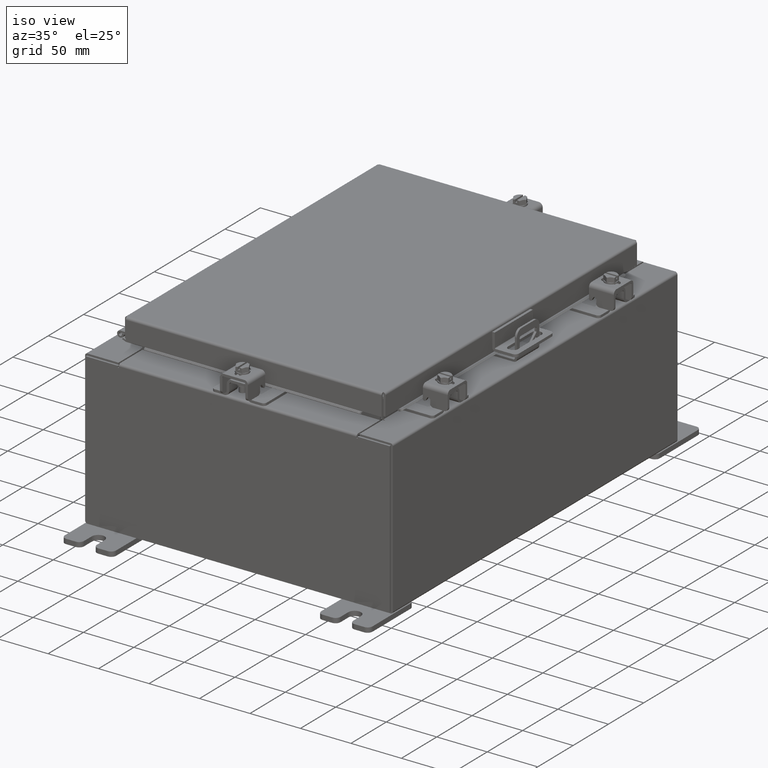
[diagram: clean part render]
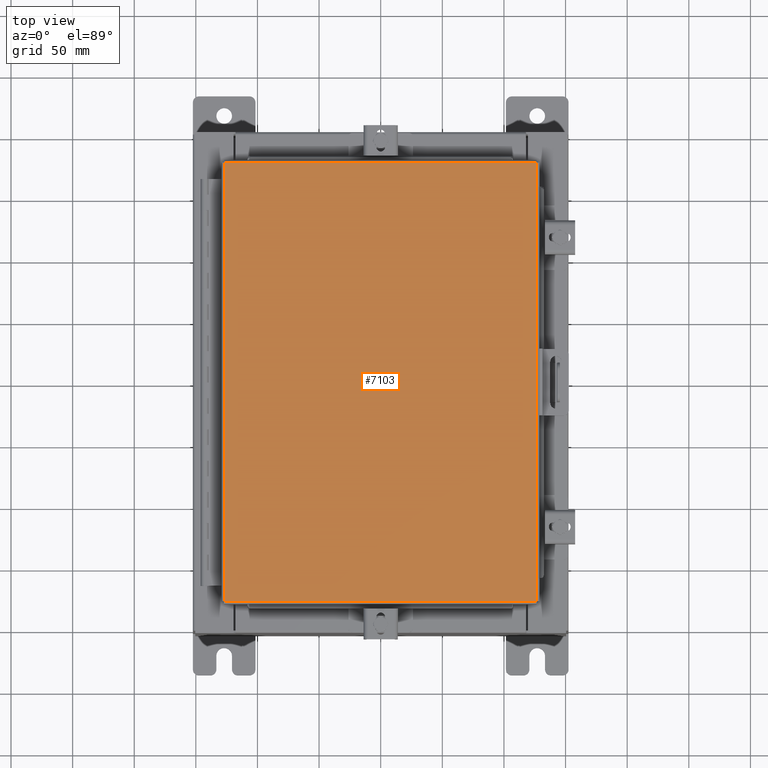
[diagram: tour spotlight — one face highlighted and labeled with its STEP entity id]
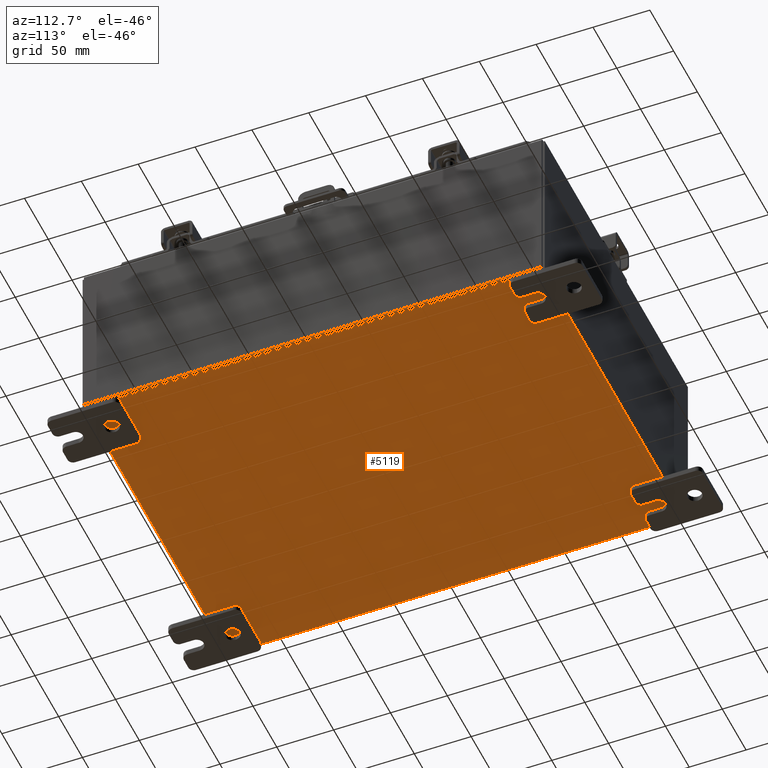
[diagram: tour spotlight — one face highlighted and labeled with its STEP entity id]
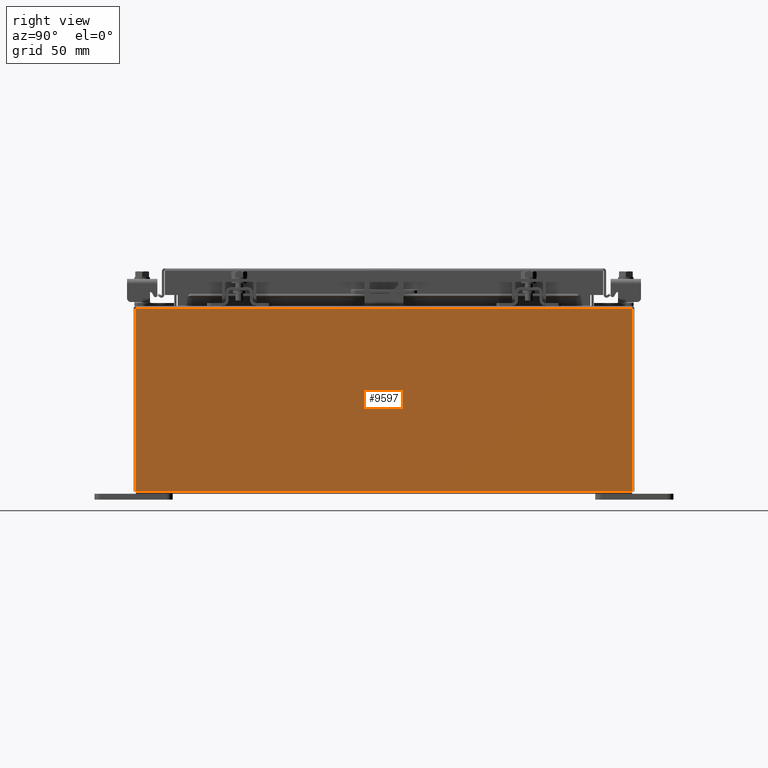
[diagram: tour spotlight — one face highlighted and labeled with its STEP entity id]
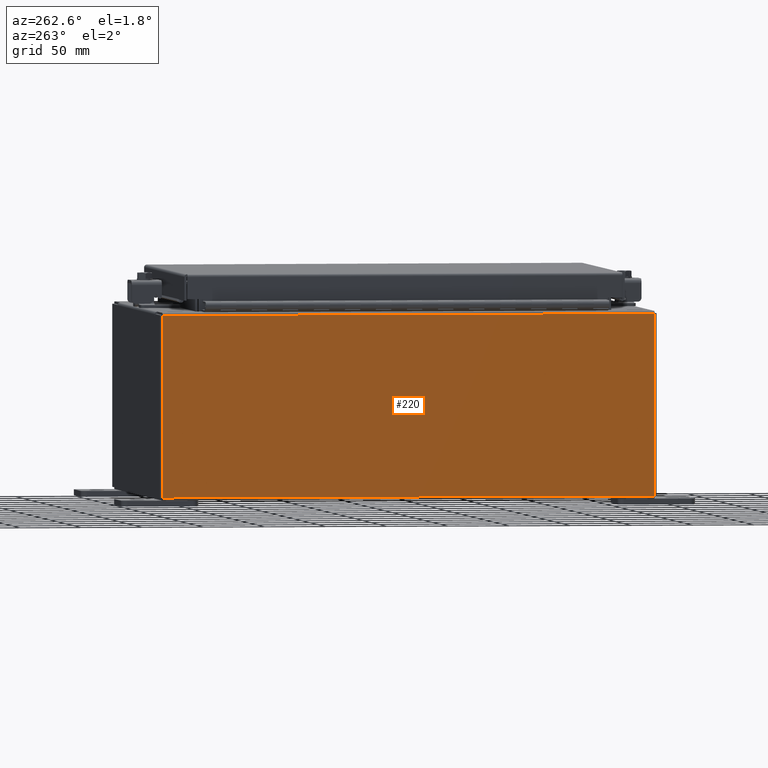
[diagram: tour spotlight — one face highlighted and labeled with its STEP entity id]
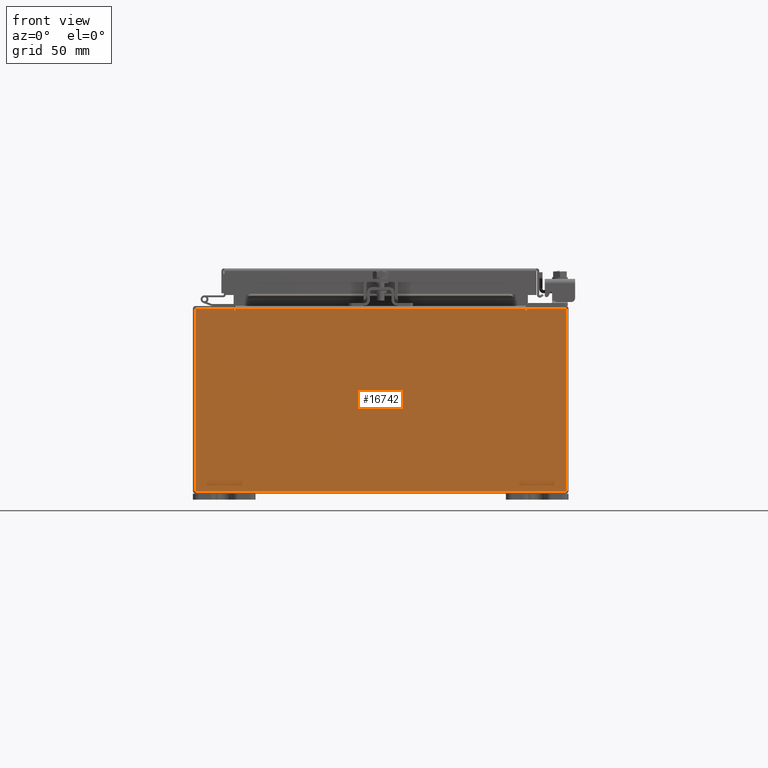
[diagram: tour spotlight — one face highlighted and labeled with its STEP entity id]
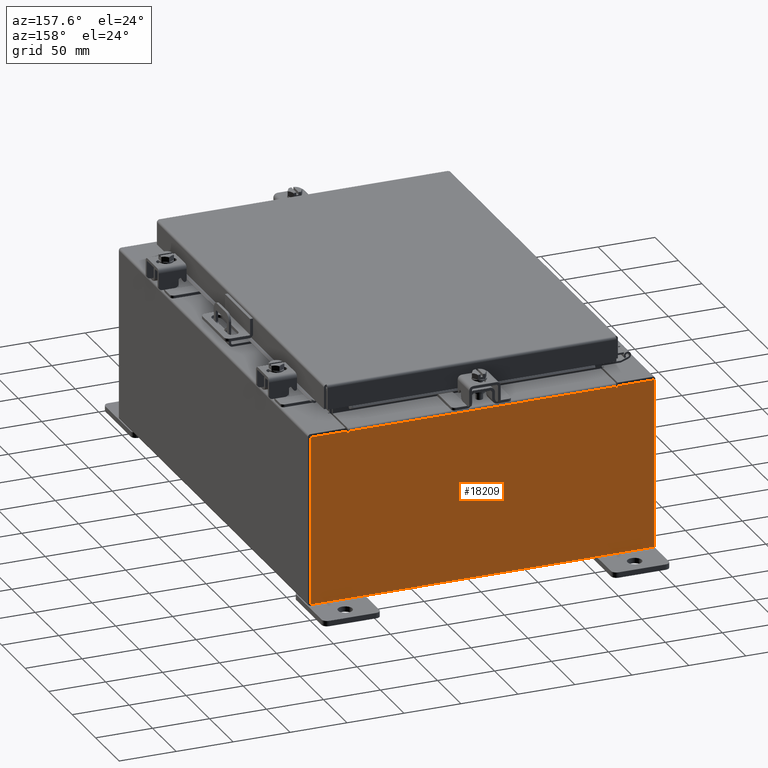
[diagram: tour spotlight — one face highlighted and labeled with its STEP entity id]
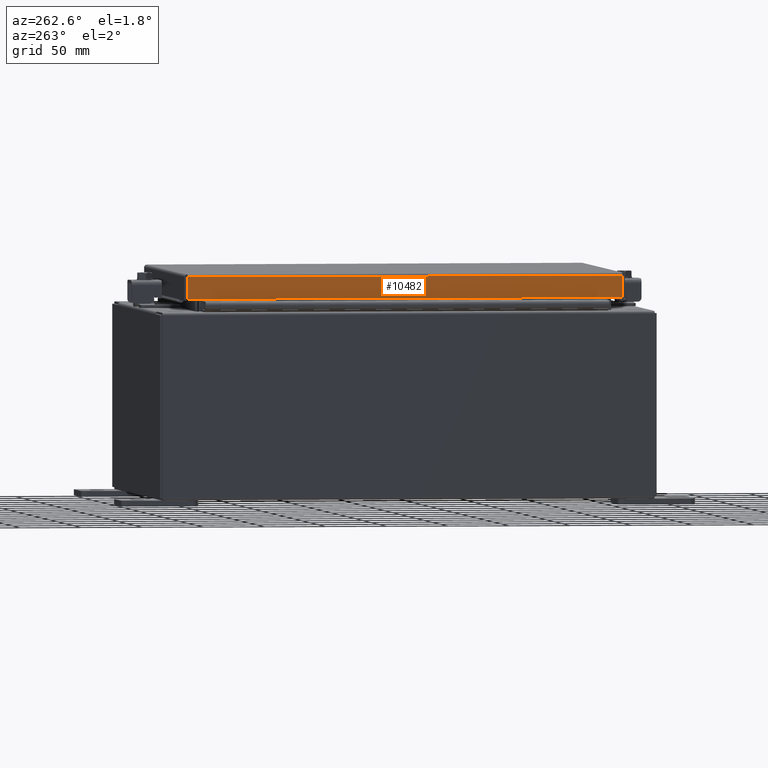
[diagram: tour spotlight — one face highlighted and labeled with its STEP entity id]
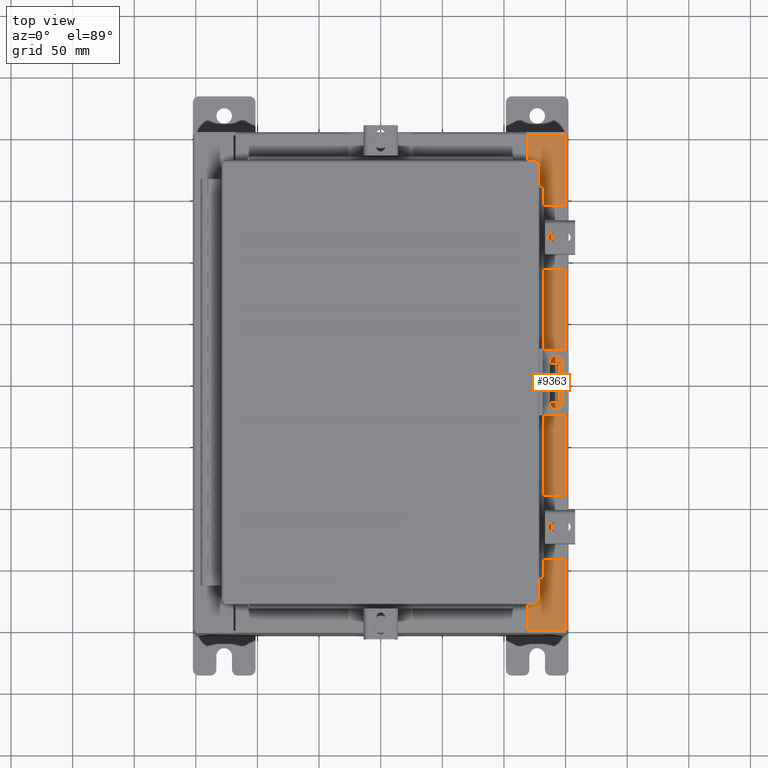
[diagram: tour spotlight — one face highlighted and labeled with its STEP entity id]
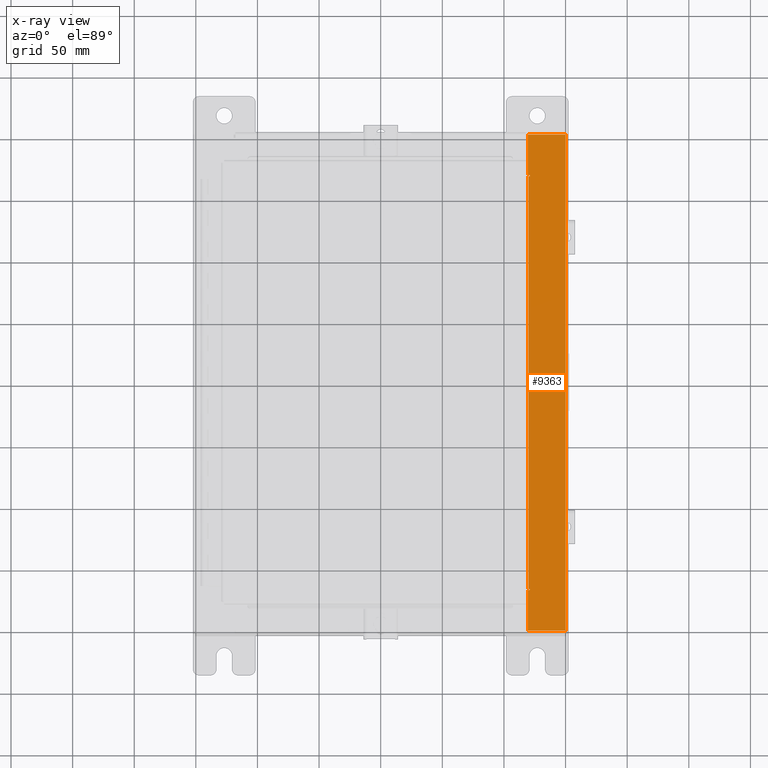
[diagram: x-ray of the same camera — body ghosted, this tour face saturated]
A machine part: a face-by-face anatomy tour. The part has 1267 B-rep faces; the first image is the clean iso view, then the 8 largest visible faces are spotlighted one at a time (largest first), each with its STEP entity span.

Face 1 — top view, entity #7103. In plain terms, the highlighted planar face has unit normal (0, 0, -1).
Definition (entity closure, byte-faithful):
#1091 = CARTESIAN_POINT ( 'NONE',  ( -4.990300000000000400, -7.006300000000000400, -2.048885995248197400E-016 ) ) ;
#2001 = CARTESIAN_POINT ( 'NONE',  ( -4.990300000000000400, 7.006300000000000400, -2.048885995248197400E-016 ) ) ;
#4199 = LINE ( 'NONE', #21515, #19618 ) ;
#4566 = FACE_OUTER_BOUND ( 'NONE', #17044, .T. ) ;
#4718 = CARTESIAN_POINT ( 'NONE',  ( -4.990300000000000400, -7.006300000000000400, -2.048885995248197400E-016 ) ) ;
#4754 = LINE ( 'NONE', #23466, #19528 ) ;
#6395 = ORIENTED_EDGE ( 'NONE', *, *, #11896, .T. ) ;
#6730 = DIRECTION ( 'NONE',  ( 1.000000000000000000, -0.0000000000000000000, -0.0000000000000000000 ) ) ;
#6850 = CARTESIAN_POINT ( 'NONE',  ( 0.0000000000000000000, 0.0000000000000000000, 0.0000000000000000000 ) ) ;
#7103 = ADVANCED_FACE ( 'NONE', ( #4566 ), #10898, .F. ) ;
#7270 = CARTESIAN_POINT ( 'NONE',  ( 4.990299999999998600, -7.006300000000000400, 3.414809992080329000E-016 ) ) ;
#7293 = DIRECTION ( 'NONE',  ( -1.000000000000000000, -0.0000000000000000000, -0.0000000000000000000 ) ) ;
#7825 = DIRECTION ( 'NONE',  ( 0.0000000000000000000, 1.000000000000000000, 0.0000000000000000000 ) ) ;
#9302 = CARTESIAN_POINT ( 'NONE',  ( 4.990299999999998600, 7.006300000000000400, -2.048885995248197400E-016 ) ) ;
#9465 = DIRECTION ( 'NONE',  ( 0.0000000000000000000, -1.000000000000000000, 0.0000000000000000000 ) ) ;
#10430 = VERTEX_POINT ( 'NONE', #1091 ) ;
#10898 = PLANE ( 'NONE',  #16053 ) ;
#11896 = EDGE_CURVE ( 'NONE', #21162, #13331, #4754, .T. ) ;
#12917 = DIRECTION ( 'NONE',  ( -1.000000000000000000, 0.0000000000000000000, -0.0000000000000000000 ) ) ;
#12961 = EDGE_CURVE ( 'NONE', #10430, #25409, #18197, .T. ) ;
#13331 = VERTEX_POINT ( 'NONE', #2001 ) ;
#15530 = VECTOR ( 'NONE', #7825, 39.37007874015748100 ) ;
#16053 = AXIS2_PLACEMENT_3D ( 'NONE', #6850, #24957, #12917 ) ;
#17044 = EDGE_LOOP ( 'NONE', ( #18362, #24315, #6395, #19094 ) ) ;
#17837 = CARTESIAN_POINT ( 'NONE',  ( 4.990299999999998600, -7.006300000000000400, 3.414809992080329000E-016 ) ) ;
#18197 = LINE ( 'NONE', #4718, #22918 ) ;
#18362 = ORIENTED_EDGE ( 'NONE', *, *, #12961, .T. ) ;
#19094 = ORIENTED_EDGE ( 'NONE', *, *, #25486, .T. ) ;
#19528 = VECTOR ( 'NONE', #7293, 39.37007874015748100 ) ;
#19618 = VECTOR ( 'NONE', #9465, 39.37007874015748100 ) ;
#20881 = LINE ( 'NONE', #17837, #15530 ) ;
#21162 = VERTEX_POINT ( 'NONE', #9302 ) ;
#21515 = CARTESIAN_POINT ( 'NONE',  ( -4.990300000000000400, 7.006300000000000400, -2.048885995248197400E-016 ) ) ;
#22918 = VECTOR ( 'NONE', #6730, 39.37007874015748100 ) ;
#23466 = CARTESIAN_POINT ( 'NONE',  ( 4.990299999999998600, 7.006300000000000400, -2.048885995248197400E-016 ) ) ;
#24315 = ORIENTED_EDGE ( 'NONE', *, *, #24959, .T. ) ;
#24957 = DIRECTION ( 'NONE',  ( 0.0000000000000000000, 0.0000000000000000000, -1.000000000000000000 ) ) ;
#24959 = EDGE_CURVE ( 'NONE', #25409, #21162, #20881, .T. ) ;
#25409 = VERTEX_POINT ( 'NONE', #7270 ) ;
#25486 = EDGE_CURVE ( 'NONE', #13331, #10430, #4199, .T. ) ;

Face 2 — auxiliary view, entity #5119. In plain terms, the highlighted planar face has unit normal (0, 0, -1).
Definition (entity closure, byte-faithful):
#1727 = CARTESIAN_POINT ( 'NONE',  ( -6.000000000000001800, -7.925300000000000900, -0.07470000000000000300 ) ) ;
#1818 = CARTESIAN_POINT ( 'NONE',  ( 5.912299999999999200, 7.925300000000000000, -0.07469999999999994700 ) ) ;
#2119 = ORIENTED_EDGE ( 'NONE', *, *, #8150, .T. ) ;
#2494 = CARTESIAN_POINT ( 'NONE',  ( 0.0000000000000000000, 0.0000000000000000000, -0.07470000000000000300 ) ) ;
#3036 = DIRECTION ( 'NONE',  ( -0.0000000000000000000, 1.000000000000000000, -8.208677865577646300E-017 ) ) ;
#4610 = PLANE ( 'NONE',  #10139 ) ;
#4791 = VECTOR ( 'NONE', #20823, 39.37007874015748100 ) ;
#4872 = CARTESIAN_POINT ( 'NONE',  ( -6.000000000000001800, 7.925299999999998200, -0.07470000000000000300 ) ) ;
#5119 = ADVANCED_FACE ( 'NONE', ( #9361 ), #4610, .T. ) ;
#6618 = DIRECTION ( 'NONE',  ( -1.000000000000000000, 0.0000000000000000000, -0.0000000000000000000 ) ) ;
#6880 = DIRECTION ( 'NONE',  ( -1.000000000000000000, -0.0000000000000000000, -0.0000000000000000000 ) ) ;
#6930 = CARTESIAN_POINT ( 'NONE',  ( -5.912300000000001000, 7.925299999999998200, -0.07470000000000000300 ) ) ;
#7063 = VECTOR ( 'NONE', #6880, 39.37007874015748100 ) ;
#8150 = EDGE_CURVE ( 'NONE', #21333, #21659, #25529, .T. ) ;
#8328 = LINE ( 'NONE', #4872, #7063 ) ;
#8868 = VECTOR ( 'NONE', #9809, 39.37007874015748100 ) ;
#9361 = FACE_OUTER_BOUND ( 'NONE', #15753, .T. ) ;
#9809 = DIRECTION ( 'NONE',  ( 1.000000000000000000, 0.0000000000000000000, 0.0000000000000000000 ) ) ;
#10139 = AXIS2_PLACEMENT_3D ( 'NONE', #2494, #18641, #6618 ) ;
#10779 = ORIENTED_EDGE ( 'NONE', *, *, #24456, .T. ) ;
#10810 = CARTESIAN_POINT ( 'NONE',  ( 5.912299999999999200, 7.925300000000000000, -0.07469999999999994700 ) ) ;
#11491 = VECTOR ( 'NONE', #3036, 39.37007874015748100 ) ;
#11789 = ORIENTED_EDGE ( 'NONE', *, *, #17501, .F. ) ;
#15753 = EDGE_LOOP ( 'NONE', ( #11789, #10779, #19128, #2119 ) ) ;
#16812 = LINE ( 'NONE', #16985, #11491 ) ;
#16985 = CARTESIAN_POINT ( 'NONE',  ( -5.912300000000001000, -7.925300000000000900, -0.07469999999999874000 ) ) ;
#17305 = VERTEX_POINT ( 'NONE', #6930 ) ;
#17501 = EDGE_CURVE ( 'NONE', #19889, #21659, #18947, .T. ) ;
#18641 = DIRECTION ( 'NONE',  ( 0.0000000000000000000, 0.0000000000000000000, -1.000000000000000000 ) ) ;
#18947 = LINE ( 'NONE', #1727, #8868 ) ;
#19128 = ORIENTED_EDGE ( 'NONE', *, *, #24647, .F. ) ;
#19889 = VERTEX_POINT ( 'NONE', #22220 ) ;
#20823 = DIRECTION ( 'NONE',  ( -0.0000000000000000000, -1.000000000000000000, -0.0000000000000000000 ) ) ;
#21333 = VERTEX_POINT ( 'NONE', #1818 ) ;
#21659 = VERTEX_POINT ( 'NONE', #23814 ) ;
#22220 = CARTESIAN_POINT ( 'NONE',  ( -5.912300000000001000, -7.925300000000000900, -0.07469999999999874000 ) ) ;
#23814 = CARTESIAN_POINT ( 'NONE',  ( 5.912299999999994800, -7.925300000000000900, -0.07470000000000000300 ) ) ;
#24456 = EDGE_CURVE ( 'NONE', #19889, #17305, #16812, .T. ) ;
#24647 = EDGE_CURVE ( 'NONE', #21333, #17305, #8328, .T. ) ;
#25529 = LINE ( 'NONE', #10810, #4791 ) ;

Face 3 — right view, entity #9597. In plain terms, the highlighted planar face has unit normal (-1, 0, 0).
Definition (entity closure, byte-faithful):
#254 = ORIENTED_EDGE ( 'NONE', *, *, #19603, .T. ) ;
#570 = EDGE_CURVE ( 'NONE', #20635, #15788, #23579, .T. ) ;
#2517 = PLANE ( 'NONE',  #7023 ) ;
#2688 = DIRECTION ( 'NONE',  ( 3.503965158194251300E-015, 0.0000000000000000000, 1.000000000000000000 ) ) ;
#3019 = CARTESIAN_POINT ( 'NONE',  ( 5.999999999999999100, -7.925300000000000000, 0.01299999999999984700 ) ) ;
#4547 = DIRECTION ( 'NONE',  ( -1.000000000000000000, 0.0000000000000000000, 3.503965158194250900E-015 ) ) ;
#6596 = CARTESIAN_POINT ( 'NONE',  ( 6.000000000000020400, 7.925300000000000000, 5.837600000000001000 ) ) ;
#7023 = AXIS2_PLACEMENT_3D ( 'NONE', #16473, #4547, #18588 ) ;
#7066 = CARTESIAN_POINT ( 'NONE',  ( 5.999999999999999100, -7.925300000000000000, 0.01299999999999984500 ) ) ;
#7349 = EDGE_CURVE ( 'NONE', #20635, #10408, #25337, .T. ) ;
#7385 = CARTESIAN_POINT ( 'NONE',  ( 5.999999999999999100, -7.925300000000000900, -1.982302697000672100E-014 ) ) ;
#8366 = VERTEX_POINT ( 'NONE', #23447 ) ;
#9402 = DIRECTION ( 'NONE',  ( -3.503965158194251300E-015, -1.844192188523290500E-016, -1.000000000000000000 ) ) ;
#9597 = ADVANCED_FACE ( 'NONE', ( #22641 ), #2517, .F. ) ;
#10408 = VERTEX_POINT ( 'NONE', #7066 ) ;
#10495 = VECTOR ( 'NONE', #16589, 39.37007874015748100 ) ;
#10671 = CARTESIAN_POINT ( 'NONE',  ( 5.999999999999999100, 7.925299999999998200, -2.128460460517708500E-014 ) ) ;
#12933 = VECTOR ( 'NONE', #9402, 39.37007874015748100 ) ;
#13566 = CARTESIAN_POINT ( 'NONE',  ( 5.999999999999999100, 7.925300000000000000, 0.01299999999999984700 ) ) ;
#13574 = LINE ( 'NONE', #7385, #12933 ) ;
#14828 = ORIENTED_EDGE ( 'NONE', *, *, #25180, .T. ) ;
#15054 = DIRECTION ( 'NONE',  ( -0.0000000000000000000, -1.000000000000000000, -0.0000000000000000000 ) ) ;
#15274 = VECTOR ( 'NONE', #15054, 39.37007874015748100 ) ;
#15788 = VERTEX_POINT ( 'NONE', #21253 ) ;
#15800 = EDGE_LOOP ( 'NONE', ( #14828, #254, #18559, #25834 ) ) ;
#16473 = CARTESIAN_POINT ( 'NONE',  ( 5.999999999999999100, 0.0000000000000000000, -2.128460460517708500E-014 ) ) ;
#16589 = DIRECTION ( 'NONE',  ( -0.0000000000000000000, -1.000000000000000000, -0.0000000000000000000 ) ) ;
#18224 = VECTOR ( 'NONE', #2688, 39.37007874015748100 ) ;
#18559 = ORIENTED_EDGE ( 'NONE', *, *, #7349, .F. ) ;
#18588 = DIRECTION ( 'NONE',  ( 3.503965158194250900E-015, 0.0000000000000000000, 1.000000000000000000 ) ) ;
#19603 = EDGE_CURVE ( 'NONE', #8366, #10408, #13574, .T. ) ;
#20635 = VERTEX_POINT ( 'NONE', #13566 ) ;
#21192 = LINE ( 'NONE', #6596, #10495 ) ;
#21253 = CARTESIAN_POINT ( 'NONE',  ( 6.000000000000020400, 7.925300000000000000, 5.837600000000001000 ) ) ;
#22641 = FACE_OUTER_BOUND ( 'NONE', #15800, .T. ) ;
#23447 = CARTESIAN_POINT ( 'NONE',  ( 6.000000000000020400, -7.925300000000000000, 5.837600000000001000 ) ) ;
#23579 = LINE ( 'NONE', #10671, #18224 ) ;
#25180 = EDGE_CURVE ( 'NONE', #15788, #8366, #21192, .T. ) ;
#25337 = LINE ( 'NONE', #3019, #15274 ) ;
#25834 = ORIENTED_EDGE ( 'NONE', *, *, #570, .T. ) ;

Face 4 — auxiliary view, entity #220. In plain terms, the highlighted planar face has unit normal (1, 0, 0).
Definition (entity closure, byte-faithful):
#220 = ADVANCED_FACE ( 'NONE', ( #21440 ), #9411, .F. ) ;
#444 = VERTEX_POINT ( 'NONE', #8073 ) ;
#903 = CARTESIAN_POINT ( 'NONE',  ( -6.000000000000001800, -7.925300000000000900, 0.01300000000000094000 ) ) ;
#1325 = CARTESIAN_POINT ( 'NONE',  ( -6.000000000000001800, 0.0000000000000000000, -2.128460460517709800E-014 ) ) ;
#1376 = EDGE_CURVE ( 'NONE', #20163, #444, #17872, .T. ) ;
#1570 = CARTESIAN_POINT ( 'NONE',  ( -6.000000000000001800, -7.925300000000000900, -1.982302697000673400E-014 ) ) ;
#2793 = EDGE_CURVE ( 'NONE', #5574, #13537, #8378, .T. ) ;
#4273 = EDGE_CURVE ( 'NONE', #13537, #20163, #16311, .T. ) ;
#5574 = VERTEX_POINT ( 'NONE', #903 ) ;
#8073 = CARTESIAN_POINT ( 'NONE',  ( -6.000000000000001800, 7.925299999999998200, 0.01299999999999974100 ) ) ;
#8378 = LINE ( 'NONE', #1570, #23786 ) ;
#8671 = CARTESIAN_POINT ( 'NONE',  ( -6.000000000000023100, -7.925300000000000000, 5.837599999999999200 ) ) ;
#9411 = PLANE ( 'NONE',  #24563 ) ;
#9659 = DIRECTION ( 'NONE',  ( -3.503965158194252100E-015, 1.844192188523290500E-016, 1.000000000000000000 ) ) ;
#10697 = DIRECTION ( 'NONE',  ( 3.503965158194252100E-015, 0.0000000000000000000, -1.000000000000000000 ) ) ;
#11135 = EDGE_LOOP ( 'NONE', ( #25802, #21094, #13619, #13329 ) ) ;
#11213 = EDGE_CURVE ( 'NONE', #5574, #444, #18879, .T. ) ;
#11428 = DIRECTION ( 'NONE',  ( 2.415631001295207100E-031, 1.000000000000000000, -6.893992640440775600E-017 ) ) ;
#11449 = DIRECTION ( 'NONE',  ( 3.503965158194251300E-015, 0.0000000000000000000, -1.000000000000000000 ) ) ;
#12288 = VECTOR ( 'NONE', #11428, 39.37007874015748100 ) ;
#13329 = ORIENTED_EDGE ( 'NONE', *, *, #2793, .T. ) ;
#13537 = VERTEX_POINT ( 'NONE', #8671 ) ;
#13619 = ORIENTED_EDGE ( 'NONE', *, *, #11213, .F. ) ;
#15679 = VECTOR ( 'NONE', #21049, 39.37007874015748100 ) ;
#16311 = LINE ( 'NONE', #18942, #15679 ) ;
#16609 = VECTOR ( 'NONE', #10697, 39.37007874015748100 ) ;
#17872 = LINE ( 'NONE', #20717, #16609 ) ;
#18879 = LINE ( 'NONE', #25487, #12288 ) ;
#18942 = CARTESIAN_POINT ( 'NONE',  ( -6.000000000000023100, -7.925300000000000900, 5.837599999999999200 ) ) ;
#20163 = VERTEX_POINT ( 'NONE', #23079 ) ;
#20717 = CARTESIAN_POINT ( 'NONE',  ( -6.000000000000001800, 7.925299999999998200, -2.128460460517709800E-014 ) ) ;
#21049 = DIRECTION ( 'NONE',  ( 0.0000000000000000000, 1.000000000000000000, 0.0000000000000000000 ) ) ;
#21094 = ORIENTED_EDGE ( 'NONE', *, *, #1376, .T. ) ;
#21440 = FACE_OUTER_BOUND ( 'NONE', #11135, .T. ) ;
#23079 = CARTESIAN_POINT ( 'NONE',  ( -6.000000000000022200, 7.925299999999998200, 5.837599999999999200 ) ) ;
#23470 = DIRECTION ( 'NONE',  ( 1.000000000000000000, 0.0000000000000000000, 3.503965158194251300E-015 ) ) ;
#23786 = VECTOR ( 'NONE', #9659, 39.37007874015748100 ) ;
#24563 = AXIS2_PLACEMENT_3D ( 'NONE', #1325, #23470, #11449 ) ;
#25487 = CARTESIAN_POINT ( 'NONE',  ( -6.000000000000001800, 7.925299999999998200, 0.01299999999999984700 ) ) ;
#25802 = ORIENTED_EDGE ( 'NONE', *, *, #4273, .T. ) ;

Face 5 — front view, entity #16742. In plain terms, the highlighted planar face has unit normal (-0, 1, -0).
Definition (entity closure, byte-faithful):
#297 = LINE ( 'NONE', #9771, #15691 ) ;
#445 = DIRECTION ( 'NONE',  ( 0.0000000000000000000, 0.0000000000000000000, -1.000000000000000000 ) ) ;
#573 = CARTESIAN_POINT ( 'NONE',  ( -5.925299999999999100, 0.0000000000000000000, 2.925300000000000000 ) ) ;
#924 = EDGE_CURVE ( 'NONE', #9037, #6296, #6594, .T. ) ;
#1161 = CARTESIAN_POINT ( 'NONE',  ( 5.925300000000001800, 0.0000000000000000000, 2.925300000000000000 ) ) ;
#1296 = VECTOR ( 'NONE', #7963, 39.37007874015748100 ) ;
#1331 = CARTESIAN_POINT ( 'NONE',  ( 4.674549999999970700, -0.0000000000000000000, -5.072556122654679100E-014 ) ) ;
#1381 = LINE ( 'NONE', #18234, #16777 ) ;
#1464 = CARTESIAN_POINT ( 'NONE',  ( 0.0000000000000000000, 0.0000000000000000000, 0.0000000000000000000 ) ) ;
#2240 = CARTESIAN_POINT ( 'NONE',  ( 4.637200000000001800, 0.0000000000000000000, 0.0000000000000000000 ) ) ;
#2332 = AXIS2_PLACEMENT_3D ( 'NONE', #1464, #19574, #7519 ) ;
#2929 = VECTOR ( 'NONE', #25503, 39.37007874015748100 ) ;
#3328 = VERTEX_POINT ( 'NONE', #8011 ) ;
#3576 = AXIS2_PLACEMENT_3D ( 'NONE', #17134, #5109, #19170 ) ;
#4513 = CARTESIAN_POINT ( 'NONE',  ( -4.674549999999999100, 0.0000000000000000000, 2.925300000000000000 ) ) ;
#4710 = VECTOR ( 'NONE', #12279, 39.37007874015748100 ) ;
#4906 = EDGE_CURVE ( 'NONE', #24300, #6296, #19125, .T. ) ;
#5109 = DIRECTION ( 'NONE',  ( -0.0000000000000000000, 1.000000000000000000, -0.0000000000000000000 ) ) ;
#5167 = EDGE_CURVE ( 'NONE', #8933, #9037, #24144, .T. ) ;
#5704 = ORIENTED_EDGE ( 'NONE', *, *, #5167, .F. ) ;
#6044 = CARTESIAN_POINT ( 'NONE',  ( -4.637199999999999100, -1.707404996040164500E-016, 2.912300000000000100 ) ) ;
#6135 = DIRECTION ( 'NONE',  ( 1.000000000000000000, 0.0000000000000000000, 0.0000000000000000000 ) ) ;
#6296 = VERTEX_POINT ( 'NONE', #4513 ) ;
#6588 = CARTESIAN_POINT ( 'NONE',  ( -4.637199999999999100, -0.0000000000000000000, 2.874949999999999700 ) ) ;
#6594 = LINE ( 'NONE', #21318, #21357 ) ;
#6948 = VERTEX_POINT ( 'NONE', #12139 ) ;
#7049 = ORIENTED_EDGE ( 'NONE', *, *, #24176, .T. ) ;
#7105 = ORIENTED_EDGE ( 'NONE', *, *, #12493, .T. ) ;
#7519 = DIRECTION ( 'NONE',  ( 0.0000000000000000000, -0.0000000000000000000, -1.000000000000000000 ) ) ;
#7541 = VERTEX_POINT ( 'NONE', #15560 ) ;
#7821 = ORIENTED_EDGE ( 'NONE', *, *, #924, .F. ) ;
#7891 = LINE ( 'NONE', #22037, #1296 ) ;
#7918 = LINE ( 'NONE', #8356, #12650 ) ;
#7963 = DIRECTION ( 'NONE',  ( -1.000000000000000000, -0.0000000000000000000, -0.0000000000000000000 ) ) ;
#8011 = CARTESIAN_POINT ( 'NONE',  ( -4.637199999999999100, -1.707404996040164500E-016, 2.912300000000000100 ) ) ;
#8027 = EDGE_CURVE ( 'NONE', #3328, #8933, #7918, .T. ) ;
#8170 = ORIENTED_EDGE ( 'NONE', *, *, #12821, .F. ) ;
#8356 = CARTESIAN_POINT ( 'NONE',  ( -4.637199999999999100, -0.0000000000000000000, 0.0000000000000000000 ) ) ;
#8526 = EDGE_CURVE ( 'NONE', #22328, #18499, #7891, .T. ) ;
#8579 = ORIENTED_EDGE ( 'NONE', *, *, #10662, .T. ) ;
#8580 = EDGE_CURVE ( 'NONE', #3328, #23747, #10730, .T. ) ;
#8933 = VERTEX_POINT ( 'NONE', #6588 ) ;
#8934 = CARTESIAN_POINT ( 'NONE',  ( -4.674549999999999100, 0.0000000000000000000, 2.874949999999999700 ) ) ;
#9037 = VERTEX_POINT ( 'NONE', #8934 ) ;
#9771 = CARTESIAN_POINT ( 'NONE',  ( -5.925299999999999100, 0.0000000000000000000, 2.925300000000000000 ) ) ;
#9871 = CARTESIAN_POINT ( 'NONE',  ( -5.925299999999999100, 0.0000000000000000000, 2.925300000000000000 ) ) ;
#10662 = EDGE_CURVE ( 'NONE', #6948, #18526, #297, .T. ) ;
#10730 = LINE ( 'NONE', #6044, #11988 ) ;
#10830 = DIRECTION ( 'NONE',  ( -0.0000000000000000000, 1.000000000000000000, -0.0000000000000000000 ) ) ;
#10835 = EDGE_LOOP ( 'NONE', ( #7821, #5704, #24339, #14618, #8170, #23834, #22212, #8579, #7049, #14742, #7105, #22808 ) ) ;
#11155 = CARTESIAN_POINT ( 'NONE',  ( -5.925299999999999100, 0.0000000000000000000, 2.925300000000000000 ) ) ;
#11633 = VECTOR ( 'NONE', #23175, 39.37007874015748100 ) ;
#11802 = DIRECTION ( 'NONE',  ( 1.000000000000000000, 0.0000000000000000000, 0.0000000000000000000 ) ) ;
#11988 = VECTOR ( 'NONE', #6135, 39.37007874015748100 ) ;
#12139 = CARTESIAN_POINT ( 'NONE',  ( 4.674550000000000900, 0.0000000000000000000, 2.925300000000000000 ) ) ;
#12267 = LINE ( 'NONE', #11155, #11633 ) ;
#12279 = DIRECTION ( 'NONE',  ( 0.0000000000000000000, 0.0000000000000000000, 1.000000000000000000 ) ) ;
#12493 = EDGE_CURVE ( 'NONE', #18499, #24300, #12267, .T. ) ;
#12650 = VECTOR ( 'NONE', #445, 39.37007874015748100 ) ;
#12821 = EDGE_CURVE ( 'NONE', #7541, #23747, #21354, .T. ) ;
#12842 = AXIS2_PLACEMENT_3D ( 'NONE', #22858, #10830, #24888 ) ;
#13012 = EDGE_CURVE ( 'NONE', #19910, #7541, #22295, .T. ) ;
#13213 = CARTESIAN_POINT ( 'NONE',  ( -5.925299999999999100, 0.0000000000000000000, -2.925300000000000000 ) ) ;
#13330 = FACE_OUTER_BOUND ( 'NONE', #10835, .T. ) ;
#13339 = DIRECTION ( 'NONE',  ( 0.0000000000000000000, 0.0000000000000000000, 1.000000000000000000 ) ) ;
#13782 = VECTOR ( 'NONE', #23923, 39.37007874015748100 ) ;
#14225 = CARTESIAN_POINT ( 'NONE',  ( 4.674550000000001800, 0.0000000000000000000, 2.874949999999999700 ) ) ;
#14618 = ORIENTED_EDGE ( 'NONE', *, *, #8580, .T. ) ;
#14742 = ORIENTED_EDGE ( 'NONE', *, *, #8526, .T. ) ;
#15560 = CARTESIAN_POINT ( 'NONE',  ( 4.637200000000001800, 0.0000000000000000000, 2.874949999999999700 ) ) ;
#15691 = VECTOR ( 'NONE', #11802, 39.37007874015748100 ) ;
#16742 = ADVANCED_FACE ( 'NONE', ( #13330 ), #25539, .F. ) ;
#16777 = VECTOR ( 'NONE', #20281, 39.37007874015748100 ) ;
#17134 = CARTESIAN_POINT ( 'NONE',  ( 4.655875000000001800, 0.0000000000000000000, 2.874949999999999700 ) ) ;
#18234 = CARTESIAN_POINT ( 'NONE',  ( 5.925300000000001800, 0.0000000000000000000, 2.925300000000000000 ) ) ;
#18499 = VERTEX_POINT ( 'NONE', #13213 ) ;
#18526 = VERTEX_POINT ( 'NONE', #1161 ) ;
#18590 = EDGE_CURVE ( 'NONE', #6948, #19910, #24307, .T. ) ;
#19125 = LINE ( 'NONE', #9871, #13782 ) ;
#19170 = DIRECTION ( 'NONE',  ( 0.0000000000000000000, 0.0000000000000000000, -1.000000000000000000 ) ) ;
#19574 = DIRECTION ( 'NONE',  ( 0.0000000000000000000, -1.000000000000000000, 0.0000000000000000000 ) ) ;
#19910 = VERTEX_POINT ( 'NONE', #14225 ) ;
#20281 = DIRECTION ( 'NONE',  ( 0.0000000000000000000, 0.0000000000000000000, -1.000000000000000000 ) ) ;
#21318 = CARTESIAN_POINT ( 'NONE',  ( -4.674549999999999100, -0.0000000000000000000, 0.0000000000000000000 ) ) ;
#21354 = LINE ( 'NONE', #2240, #4710 ) ;
#21357 = VECTOR ( 'NONE', #13339, 39.37007874015748100 ) ;
#22037 = CARTESIAN_POINT ( 'NONE',  ( -5.925299999999999100, 0.0000000000000000000, -2.925300000000000000 ) ) ;
#22212 = ORIENTED_EDGE ( 'NONE', *, *, #18590, .F. ) ;
#22295 = CIRCLE ( 'NONE', #3576, 0.01867500000000003900 ) ;
#22328 = VERTEX_POINT ( 'NONE', #26060 ) ;
#22808 = ORIENTED_EDGE ( 'NONE', *, *, #4906, .T. ) ;
#22858 = CARTESIAN_POINT ( 'NONE',  ( -4.655874999999999100, 0.0000000000000000000, 2.874949999999999700 ) ) ;
#23175 = DIRECTION ( 'NONE',  ( -0.0000000000000000000, -0.0000000000000000000, 1.000000000000000000 ) ) ;
#23747 = VERTEX_POINT ( 'NONE', #25036 ) ;
#23834 = ORIENTED_EDGE ( 'NONE', *, *, #13012, .F. ) ;
#23923 = DIRECTION ( 'NONE',  ( 1.000000000000000000, 0.0000000000000000000, 0.0000000000000000000 ) ) ;
#24144 = CIRCLE ( 'NONE', #12842, 0.01867500000000003900 ) ;
#24176 = EDGE_CURVE ( 'NONE', #18526, #22328, #1381, .T. ) ;
#24300 = VERTEX_POINT ( 'NONE', #573 ) ;
#24307 = LINE ( 'NONE', #1331, #2929 ) ;
#24339 = ORIENTED_EDGE ( 'NONE', *, *, #8027, .F. ) ;
#24888 = DIRECTION ( 'NONE',  ( 0.0000000000000000000, 0.0000000000000000000, -1.000000000000000000 ) ) ;
#25036 = CARTESIAN_POINT ( 'NONE',  ( 4.637200000000001800, 0.0000000000000000000, 2.912300000000000100 ) ) ;
#25503 = DIRECTION ( 'NONE',  ( -1.085143195100001200E-014, 0.0000000000000000000, -1.000000000000000000 ) ) ;
#25539 = PLANE ( 'NONE',  #2332 ) ;
#26060 = CARTESIAN_POINT ( 'NONE',  ( 5.925300000000001800, 0.0000000000000000000, -2.925300000000000000 ) ) ;

Face 6 — auxiliary view, entity #18209. In plain terms, the highlighted planar face has unit normal (0, -1, 0).
Definition (entity closure, byte-faithful):
#49 = VECTOR ( 'NONE', #1517, 39.37007874015748100 ) ;
#263 = ORIENTED_EDGE ( 'NONE', *, *, #18965, .T. ) ;
#413 = EDGE_LOOP ( 'NONE', ( #8369, #4816, #14338, #16280, #3954, #19677, #7856, #263, #13549, #13950, #7038, #5961 ) ) ;
#694 = LINE ( 'NONE', #15578, #49 ) ;
#1052 = FACE_OUTER_BOUND ( 'NONE', #413, .T. ) ;
#1102 = CARTESIAN_POINT ( 'NONE',  ( 5.925300000000001800, 0.0000000000000000000, -2.925300000000000000 ) ) ;
#1517 = DIRECTION ( 'NONE',  ( 1.000000000000000000, 0.0000000000000000000, 0.0000000000000000000 ) ) ;
#1712 = CARTESIAN_POINT ( 'NONE',  ( 5.925300000000001800, 0.0000000000000000000, 2.925300000000000000 ) ) ;
#1796 = CARTESIAN_POINT ( 'NONE',  ( -4.674549999999999100, 0.0000000000000000000, 2.874949999999999700 ) ) ;
#1805 = LINE ( 'NONE', #21406, #11878 ) ;
#1865 = PLANE ( 'NONE',  #5233 ) ;
#2000 = VERTEX_POINT ( 'NONE', #22201 ) ;
#2098 = DIRECTION ( 'NONE',  ( 1.000000000000000000, 0.0000000000000000000, 0.0000000000000000000 ) ) ;
#2194 = DIRECTION ( 'NONE',  ( 1.000000000000000000, 0.0000000000000000000, 0.0000000000000000000 ) ) ;
#2477 = CARTESIAN_POINT ( 'NONE',  ( -5.925299999999999100, 0.0000000000000000000, 2.925300000000000000 ) ) ;
#2920 = LINE ( 'NONE', #16247, #12351 ) ;
#3402 = DIRECTION ( 'NONE',  ( -1.000000000000000000, -0.0000000000000000000, -0.0000000000000000000 ) ) ;
#3446 = CARTESIAN_POINT ( 'NONE',  ( 4.637200000000001800, 0.0000000000000000000, 2.874949999999999700 ) ) ;
#3954 = ORIENTED_EDGE ( 'NONE', *, *, #19792, .F. ) ;
#4816 = ORIENTED_EDGE ( 'NONE', *, *, #14314, .F. ) ;
#4826 = VERTEX_POINT ( 'NONE', #21730 ) ;
#5233 = AXIS2_PLACEMENT_3D ( 'NONE', #15920, #17940, #5919 ) ;
#5503 = CARTESIAN_POINT ( 'NONE',  ( 4.655875000000001800, 0.0000000000000000000, 2.874949999999999700 ) ) ;
#5919 = DIRECTION ( 'NONE',  ( 0.0000000000000000000, -0.0000000000000000000, -1.000000000000000000 ) ) ;
#5961 = ORIENTED_EDGE ( 'NONE', *, *, #7789, .T. ) ;
#6107 = LINE ( 'NONE', #18007, #16782 ) ;
#6215 = VERTEX_POINT ( 'NONE', #10294 ) ;
#6326 = VERTEX_POINT ( 'NONE', #20678 ) ;
#6604 = VECTOR ( 'NONE', #24667, 39.37007874015748100 ) ;
#7038 = ORIENTED_EDGE ( 'NONE', *, *, #25020, .T. ) ;
#7352 = DIRECTION ( 'NONE',  ( 0.0000000000000000000, 0.0000000000000000000, 1.000000000000000000 ) ) ;
#7432 = CIRCLE ( 'NONE', #12020, 0.01867500000000003900 ) ;
#7503 = DIRECTION ( 'NONE',  ( 0.0000000000000000000, 0.0000000000000000000, -1.000000000000000000 ) ) ;
#7789 = EDGE_CURVE ( 'NONE', #15571, #8568, #2920, .T. ) ;
#7856 = ORIENTED_EDGE ( 'NONE', *, *, #9621, .F. ) ;
#8369 = ORIENTED_EDGE ( 'NONE', *, *, #13723, .F. ) ;
#8560 = CARTESIAN_POINT ( 'NONE',  ( 4.674549999999970700, -0.0000000000000000000, -5.072556122654679100E-014 ) ) ;
#8568 = VERTEX_POINT ( 'NONE', #16135 ) ;
#8596 = VECTOR ( 'NONE', #3402, 39.37007874015748100 ) ;
#8793 = EDGE_CURVE ( 'NONE', #6326, #20003, #22362, .T. ) ;
#9468 = DIRECTION ( 'NONE',  ( 0.0000000000000000000, 0.0000000000000000000, -1.000000000000000000 ) ) ;
#9621 = EDGE_CURVE ( 'NONE', #2000, #24139, #11321, .T. ) ;
#10294 = CARTESIAN_POINT ( 'NONE',  ( 5.925300000000001800, 0.0000000000000000000, 2.925300000000000000 ) ) ;
#10969 = LINE ( 'NONE', #21518, #21656 ) ;
#11207 = DIRECTION ( 'NONE',  ( -0.0000000000000000000, 1.000000000000000000, -0.0000000000000000000 ) ) ;
#11321 = LINE ( 'NONE', #8560, #6604 ) ;
#11860 = CARTESIAN_POINT ( 'NONE',  ( 4.637200000000001800, 0.0000000000000000000, 0.0000000000000000000 ) ) ;
#11878 = VECTOR ( 'NONE', #7352, 39.37007874015748100 ) ;
#12020 = AXIS2_PLACEMENT_3D ( 'NONE', #5503, #19558, #7503 ) ;
#12351 = VECTOR ( 'NONE', #2194, 39.37007874015748100 ) ;
#13549 = ORIENTED_EDGE ( 'NONE', *, *, #13850, .T. ) ;
#13723 = EDGE_CURVE ( 'NONE', #13877, #8568, #1805, .T. ) ;
#13850 = EDGE_CURVE ( 'NONE', #6215, #22544, #20063, .T. ) ;
#13877 = VERTEX_POINT ( 'NONE', #1796 ) ;
#13950 = ORIENTED_EDGE ( 'NONE', *, *, #16719, .T. ) ;
#14064 = DIRECTION ( 'NONE',  ( -0.0000000000000000000, -0.0000000000000000000, 1.000000000000000000 ) ) ;
#14314 = EDGE_CURVE ( 'NONE', #23371, #13877, #25996, .T. ) ;
#14338 = ORIENTED_EDGE ( 'NONE', *, *, #21230, .F. ) ;
#15571 = VERTEX_POINT ( 'NONE', #2477 ) ;
#15578 = CARTESIAN_POINT ( 'NONE',  ( -5.925299999999999100, 0.0000000000000000000, 2.925300000000000000 ) ) ;
#15920 = CARTESIAN_POINT ( 'NONE',  ( 0.0000000000000000000, 0.0000000000000000000, 0.0000000000000000000 ) ) ;
#16058 = CARTESIAN_POINT ( 'NONE',  ( -4.637199999999999100, -1.707404996040164500E-016, 2.912300000000000100 ) ) ;
#16122 = CARTESIAN_POINT ( 'NONE',  ( 4.674550000000001800, 0.0000000000000000000, 2.874949999999999700 ) ) ;
#16135 = CARTESIAN_POINT ( 'NONE',  ( -4.674549999999999100, 0.0000000000000000000, 2.925300000000000000 ) ) ;
#16247 = CARTESIAN_POINT ( 'NONE',  ( -5.925299999999999100, 0.0000000000000000000, 2.925300000000000000 ) ) ;
#16280 = ORIENTED_EDGE ( 'NONE', *, *, #8793, .T. ) ;
#16374 = LINE ( 'NONE', #11860, #24570 ) ;
#16719 = EDGE_CURVE ( 'NONE', #22544, #4826, #24657, .T. ) ;
#16782 = VECTOR ( 'NONE', #14064, 39.37007874015748100 ) ;
#16994 = VECTOR ( 'NONE', #2098, 39.37007874015748100 ) ;
#17790 = DIRECTION ( 'NONE',  ( 0.0000000000000000000, 0.0000000000000000000, -1.000000000000000000 ) ) ;
#17940 = DIRECTION ( 'NONE',  ( 0.0000000000000000000, -1.000000000000000000, 0.0000000000000000000 ) ) ;
#18007 = CARTESIAN_POINT ( 'NONE',  ( -5.925299999999999100, 0.0000000000000000000, 2.925300000000000000 ) ) ;
#18209 = ADVANCED_FACE ( 'NONE', ( #1052 ), #1865, .F. ) ;
#18965 = EDGE_CURVE ( 'NONE', #2000, #6215, #694, .T. ) ;
#19423 = VECTOR ( 'NONE', #17790, 39.37007874015748100 ) ;
#19558 = DIRECTION ( 'NONE',  ( -0.0000000000000000000, 1.000000000000000000, -0.0000000000000000000 ) ) ;
#19620 = CARTESIAN_POINT ( 'NONE',  ( -4.637199999999999100, -0.0000000000000000000, 2.874949999999999700 ) ) ;
#19677 = ORIENTED_EDGE ( 'NONE', *, *, #22657, .F. ) ;
#19792 = EDGE_CURVE ( 'NONE', #23331, #20003, #16374, .T. ) ;
#20003 = VERTEX_POINT ( 'NONE', #23683 ) ;
#20063 = LINE ( 'NONE', #1712, #19423 ) ;
#20678 = CARTESIAN_POINT ( 'NONE',  ( -4.637199999999999100, -1.707404996040164500E-016, 2.912300000000000100 ) ) ;
#21230 = EDGE_CURVE ( 'NONE', #6326, #23371, #10969, .T. ) ;
#21406 = CARTESIAN_POINT ( 'NONE',  ( -4.674549999999999100, -0.0000000000000000000, 0.0000000000000000000 ) ) ;
#21518 = CARTESIAN_POINT ( 'NONE',  ( -4.637199999999999100, -0.0000000000000000000, 0.0000000000000000000 ) ) ;
#21656 = VECTOR ( 'NONE', #9468, 39.37007874015748100 ) ;
#21730 = CARTESIAN_POINT ( 'NONE',  ( -5.925299999999999100, 0.0000000000000000000, -2.925300000000000000 ) ) ;
#21873 = DIRECTION ( 'NONE',  ( 0.0000000000000000000, 0.0000000000000000000, 1.000000000000000000 ) ) ;
#22201 = CARTESIAN_POINT ( 'NONE',  ( 4.674550000000000900, 0.0000000000000000000, 2.925300000000000000 ) ) ;
#22362 = LINE ( 'NONE', #16058, #16994 ) ;
#22544 = VERTEX_POINT ( 'NONE', #1102 ) ;
#22657 = EDGE_CURVE ( 'NONE', #24139, #23331, #7432, .T. ) ;
#23219 = CARTESIAN_POINT ( 'NONE',  ( -4.655874999999999100, 0.0000000000000000000, 2.874949999999999700 ) ) ;
#23331 = VERTEX_POINT ( 'NONE', #3446 ) ;
#23371 = VERTEX_POINT ( 'NONE', #19620 ) ;
#23683 = CARTESIAN_POINT ( 'NONE',  ( 4.637200000000001800, 0.0000000000000000000, 2.912300000000000100 ) ) ;
#24139 = VERTEX_POINT ( 'NONE', #16122 ) ;
#24570 = VECTOR ( 'NONE', #21873, 39.37007874015748100 ) ;
#24657 = LINE ( 'NONE', #25200, #8596 ) ;
#24667 = DIRECTION ( 'NONE',  ( -1.085143195100001200E-014, 0.0000000000000000000, -1.000000000000000000 ) ) ;
#25020 = EDGE_CURVE ( 'NONE', #4826, #15571, #6107, .T. ) ;
#25200 = CARTESIAN_POINT ( 'NONE',  ( -5.925299999999999100, 0.0000000000000000000, -2.925300000000000000 ) ) ;
#25249 = DIRECTION ( 'NONE',  ( 0.0000000000000000000, 0.0000000000000000000, -1.000000000000000000 ) ) ;
#25356 = AXIS2_PLACEMENT_3D ( 'NONE', #23219, #11207, #25249 ) ;
#25996 = CIRCLE ( 'NONE', #25356, 0.01867500000000003900 ) ;

Face 7 — auxiliary view, entity #10482. In plain terms, the highlighted planar face has unit normal (1, 0, -0).
Definition (entity closure, byte-faithful):
#55 = CARTESIAN_POINT ( 'NONE',  ( -5.078000000000001200, -7.005157864376269700, -0.08770000000000007000 ) ) ;
#2297 = DIRECTION ( 'NONE',  ( -3.034122441942816500E-015, 6.982962677686265900E-015, -1.000000000000000000 ) ) ;
#2955 = VERTEX_POINT ( 'NONE', #55 ) ;
#3728 = FACE_OUTER_BOUND ( 'NONE', #8998, .T. ) ;
#5328 = LINE ( 'NONE', #14518, #10661 ) ;
#7058 = DIRECTION ( 'NONE',  ( 4.379057701015054300E-047, 1.000000000000000000, 1.251551449028595500E-016 ) ) ;
#8879 = ORIENTED_EDGE ( 'NONE', *, *, #15125, .F. ) ;
#8998 = EDGE_LOOP ( 'NONE', ( #18867, #11401, #8879, #22656 ) ) ;
#9345 = EDGE_CURVE ( 'NONE', #2955, #15939, #16345, .T. ) ;
#10482 = ADVANCED_FACE ( 'NONE', ( #3728 ), #19278, .F. ) ;
#10661 = VECTOR ( 'NONE', #2297, 39.37007874015748100 ) ;
#10891 = EDGE_CURVE ( 'NONE', #11151, #23247, #5328, .T. ) ;
#11037 = EDGE_CURVE ( 'NONE', #11151, #2955, #18825, .T. ) ;
#11151 = VERTEX_POINT ( 'NONE', #19244 ) ;
#11291 = DIRECTION ( 'NONE',  ( 1.000000000000000000, 3.797360338743711400E-031, -3.034122441942816500E-015 ) ) ;
#11401 = ORIENTED_EDGE ( 'NONE', *, *, #10891, .T. ) ;
#12855 = VECTOR ( 'NONE', #14950, 39.37007874015748100 ) ;
#13055 = CARTESIAN_POINT ( 'NONE',  ( -5.078000000000001200, -1.928299580014057100E-030, 1.566808741619720900E-014 ) ) ;
#13203 = CARTESIAN_POINT ( 'NONE',  ( -5.078000000000003000, 7.005157864376276000, -0.7949999999999979300 ) ) ;
#14518 = CARTESIAN_POINT ( 'NONE',  ( -5.078000000000001200, 7.005157864376269700, 6.458484333443713300E-014 ) ) ;
#14950 = DIRECTION ( 'NONE',  ( 3.797360338743712300E-031, -1.000000000000000000, -1.119390514946887900E-045 ) ) ;
#15125 = EDGE_CURVE ( 'NONE', #15939, #23247, #20293, .T. ) ;
#15554 = VECTOR ( 'NONE', #7058, 39.37007874015748100 ) ;
#15759 = CARTESIAN_POINT ( 'NONE',  ( -5.078000000000001200, -7.005157864376269700, -0.07469999999999976700 ) ) ;
#15939 = VERTEX_POINT ( 'NONE', #22769 ) ;
#16345 = LINE ( 'NONE', #15759, #21072 ) ;
#17984 = AXIS2_PLACEMENT_3D ( 'NONE', #13055, #11291, #25342 ) ;
#18825 = LINE ( 'NONE', #22939, #12855 ) ;
#18867 = ORIENTED_EDGE ( 'NONE', *, *, #11037, .F. ) ;
#19097 = CARTESIAN_POINT ( 'NONE',  ( -5.078000000000003000, -7.094000000000000300, -0.7949999999999997100 ) ) ;
#19244 = CARTESIAN_POINT ( 'NONE',  ( -5.078000000000001200, 7.005157864376269700, -0.08770000000000004200 ) ) ;
#19278 = PLANE ( 'NONE',  #17984 ) ;
#19848 = DIRECTION ( 'NONE',  ( -3.034122441942816500E-015, 6.982962677686265900E-015, -1.000000000000000000 ) ) ;
#20293 = LINE ( 'NONE', #19097, #15554 ) ;
#21072 = VECTOR ( 'NONE', #19848, 39.37007874015748100 ) ;
#22656 = ORIENTED_EDGE ( 'NONE', *, *, #9345, .F. ) ;
#22769 = CARTESIAN_POINT ( 'NONE',  ( -5.078000000000003000, -7.005157864376264400, -0.7949999999999996000 ) ) ;
#22939 = CARTESIAN_POINT ( 'NONE',  ( -5.078000000000001200, -7.094000000000000300, -0.08770000000000004200 ) ) ;
#23247 = VERTEX_POINT ( 'NONE', #13203 ) ;
#25342 = DIRECTION ( 'NONE',  ( -3.034122441942816500E-015, 0.0000000000000000000, -1.000000000000000000 ) ) ;

Face 8 — top view, entity #9363. An x-ray twin of the same camera follows (body ghosted, this face saturated) — the face is partly hidden behind the body. In plain terms, the highlighted planar face has unit normal (-0, 0, -1).
Definition (entity closure, byte-faithful):
#335 = VERTEX_POINT ( 'NONE', #15721 ) ;
#478 = VERTEX_POINT ( 'NONE', #20227 ) ;
#1415 = VECTOR ( 'NONE', #19026, 39.37007874015748100 ) ;
#1638 = CARTESIAN_POINT ( 'NONE',  ( 4.699700000000020400, -6.631100000000000900, 5.925300000000009800 ) ) ;
#1794 = DIRECTION ( 'NONE',  ( -1.000000000000000000, 0.0000000000000000000, 0.0000000000000000000 ) ) ;
#1801 = PLANE ( 'NONE',  #7518 ) ;
#2197 = EDGE_CURVE ( 'NONE', #10862, #5241, #10930, .T. ) ;
#2220 = CARTESIAN_POINT ( 'NONE',  ( 4.750050000000021200, -6.612425000000000900, 5.925300000000009800 ) ) ;
#2762 = VECTOR ( 'NONE', #9890, 39.37007874015748100 ) ;
#3386 = LINE ( 'NONE', #7860, #2762 ) ;
#3607 = VECTOR ( 'NONE', #15179, 39.37007874015748100 ) ;
#3825 = DIRECTION ( 'NONE',  ( -1.000000000000000000, 0.0000000000000000000, 7.132762385546378400E-015 ) ) ;
#4001 = EDGE_CURVE ( 'NONE', #5643, #25607, #21361, .T. ) ;
#4252 = DIRECTION ( 'NONE',  ( 1.000000000000000000, 0.0000000000000000000, 0.0000000000000000000 ) ) ;
#4421 = CIRCLE ( 'NONE', #20595, 0.01867500000000003900 ) ;
#5046 = FACE_OUTER_BOUND ( 'NONE', #24673, .T. ) ;
#5241 = VERTEX_POINT ( 'NONE', #10915 ) ;
#5370 = LINE ( 'NONE', #23171, #3607 ) ;
#5430 = EDGE_CURVE ( 'NONE', #13614, #25607, #23813, .T. ) ;
#5549 = VERTEX_POINT ( 'NONE', #8881 ) ;
#5594 = VECTOR ( 'NONE', #24750, 39.37007874015748100 ) ;
#5643 = VERTEX_POINT ( 'NONE', #11190 ) ;
#5773 = CARTESIAN_POINT ( 'NONE',  ( 4.252457061908984900E-014, 0.0000000000000000000, 5.925300000000044400 ) ) ;
#5784 = CARTESIAN_POINT ( 'NONE',  ( 5.912300000000019700, -7.925300000000000000, 5.925300000000001800 ) ) ;
#6543 = CARTESIAN_POINT ( 'NONE',  ( 5.912300000000019700, -7.925300000000000000, 5.925300000000001800 ) ) ;
#6828 = CIRCLE ( 'NONE', #19783, 0.01867500000000003900 ) ;
#7272 = DIRECTION ( 'NONE',  ( 0.0000000000000000000, -1.000000000000000000, 0.0000000000000000000 ) ) ;
#7518 = AXIS2_PLACEMENT_3D ( 'NONE', #5773, #15855, #3825 ) ;
#7860 = CARTESIAN_POINT ( 'NONE',  ( 4.750050000000021200, 6.631100000000000000, 5.925300000000009800 ) ) ;
#8065 = CARTESIAN_POINT ( 'NONE',  ( 4.699700000000020400, -6.631100000000000900, 5.925300000000009800 ) ) ;
#8317 = EDGE_CURVE ( 'NONE', #478, #5549, #17651, .T. ) ;
#8365 = CARTESIAN_POINT ( 'NONE',  ( 4.712700000000021200, 6.593750000000000000, 5.925300000000009800 ) ) ;
#8543 = DIRECTION ( 'NONE',  ( -0.0000000000000000000, -1.000000000000000000, -0.0000000000000000000 ) ) ;
#8559 = VECTOR ( 'NONE', #11118, 39.37007874015748100 ) ;
#8572 = CARTESIAN_POINT ( 'NONE',  ( 4.750050000000021200, 6.631100000000000000, 5.925300000000009800 ) ) ;
#8881 = CARTESIAN_POINT ( 'NONE',  ( 4.699700000000020400, 6.631099999999999100, 5.925300000000009800 ) ) ;
#8968 = LINE ( 'NONE', #21924, #19693 ) ;
#9124 = EDGE_CURVE ( 'NONE', #12022, #10862, #5370, .T. ) ;
#9363 = ADVANCED_FACE ( 'NONE', ( #5046 ), #1801, .F. ) ;
#9890 = DIRECTION ( 'NONE',  ( -1.000000000000000000, 0.0000000000000000000, 0.0000000000000000000 ) ) ;
#10056 = ORIENTED_EDGE ( 'NONE', *, *, #18808, .T. ) ;
#10197 = ORIENTED_EDGE ( 'NONE', *, *, #16379, .F. ) ;
#10826 = LINE ( 'NONE', #8065, #21516 ) ;
#10862 = VERTEX_POINT ( 'NONE', #8365 ) ;
#10915 = CARTESIAN_POINT ( 'NONE',  ( 4.750050000000021200, 6.593749999999999100, 5.925300000000009800 ) ) ;
#10930 = LINE ( 'NONE', #18675, #5594 ) ;
#11096 = ORIENTED_EDGE ( 'NONE', *, *, #14724, .F. ) ;
#11118 = DIRECTION ( 'NONE',  ( 0.0000000000000000000, -1.000000000000000000, 0.0000000000000000000 ) ) ;
#11190 = CARTESIAN_POINT ( 'NONE',  ( 4.699700000000020400, -7.925300000000000900, 5.925300000000009800 ) ) ;
#11662 = CARTESIAN_POINT ( 'NONE',  ( 4.750050000000021200, 6.612425000000000000, 5.925300000000009800 ) ) ;
#11687 = VECTOR ( 'NONE', #7272, 39.37007874015748100 ) ;
#12022 = VERTEX_POINT ( 'NONE', #19799 ) ;
#12103 = CARTESIAN_POINT ( 'NONE',  ( 4.959073083586120100E-014, -7.925300000000005300, 5.925300000000044400 ) ) ;
#12112 = LINE ( 'NONE', #21045, #1415 ) ;
#12551 = ORIENTED_EDGE ( 'NONE', *, *, #13886, .F. ) ;
#12963 = ORIENTED_EDGE ( 'NONE', *, *, #22174, .F. ) ;
#13614 = VERTEX_POINT ( 'NONE', #19134 ) ;
#13689 = DIRECTION ( 'NONE',  ( 1.000000000000000000, 0.0000000000000000000, 0.0000000000000000000 ) ) ;
#13759 = VECTOR ( 'NONE', #8543, 39.37007874015748100 ) ;
#13886 = EDGE_CURVE ( 'NONE', #25848, #5549, #3386, .T. ) ;
#13910 = LINE ( 'NONE', #17077, #8559 ) ;
#14257 = ORIENTED_EDGE ( 'NONE', *, *, #8317, .T. ) ;
#14724 = EDGE_CURVE ( 'NONE', #335, #12022, #8968, .T. ) ;
#15179 = DIRECTION ( 'NONE',  ( -0.0000000000000000000, 1.000000000000000000, -0.0000000000000000000 ) ) ;
#15721 = CARTESIAN_POINT ( 'NONE',  ( 4.750050000000021200, -6.593750000000000900, 5.925300000000009800 ) ) ;
#15855 = DIRECTION ( 'NONE',  ( -7.132762385546378400E-015, 0.0000000000000000000, -1.000000000000000000 ) ) ;
#16275 = DIRECTION ( 'NONE',  ( 7.132762385546378400E-015, 0.0000000000000000000, 1.000000000000000000 ) ) ;
#16379 = EDGE_CURVE ( 'NONE', #17426, #21171, #10826, .T. ) ;
#17077 = CARTESIAN_POINT ( 'NONE',  ( 4.699700000000020400, 0.0000000000000000000, 5.925300000000009800 ) ) ;
#17290 = CARTESIAN_POINT ( 'NONE',  ( 4.699700000000020400, 0.0000000000000000000, 5.925300000000009800 ) ) ;
#17426 = VERTEX_POINT ( 'NONE', #1638 ) ;
#17651 = LINE ( 'NONE', #17290, #11687 ) ;
#17721 = ORIENTED_EDGE ( 'NONE', *, *, #2197, .F. ) ;
#18201 = ORIENTED_EDGE ( 'NONE', *, *, #4001, .T. ) ;
#18326 = ORIENTED_EDGE ( 'NONE', *, *, #9124, .F. ) ;
#18468 = ORIENTED_EDGE ( 'NONE', *, *, #20311, .F. ) ;
#18473 = ORIENTED_EDGE ( 'NONE', *, *, #24450, .T. ) ;
#18675 = CARTESIAN_POINT ( 'NONE',  ( 4.712700000000021200, 6.593750000000000000, 5.925300000000009800 ) ) ;
#18808 = EDGE_CURVE ( 'NONE', #17426, #5643, #13910, .T. ) ;
#19026 = DIRECTION ( 'NONE',  ( -1.000000000000000000, 0.0000000000000000000, 7.132762385546378400E-015 ) ) ;
#19134 = CARTESIAN_POINT ( 'NONE',  ( 5.912300000000019700, 7.925300000000000000, 5.925300000000001800 ) ) ;
#19693 = VECTOR ( 'NONE', #1794, 39.37007874015748100 ) ;
#19783 = AXIS2_PLACEMENT_3D ( 'NONE', #11662, #25719, #13689 ) ;
#19799 = CARTESIAN_POINT ( 'NONE',  ( 4.712700000000021200, -6.593750000000000900, 5.925300000000009800 ) ) ;
#20127 = DIRECTION ( 'NONE',  ( 1.000000000000000000, 0.0000000000000000000, 0.0000000000000000000 ) ) ;
#20227 = CARTESIAN_POINT ( 'NONE',  ( 4.699700000000020400, 7.925300000000000000, 5.925300000000009800 ) ) ;
#20311 = EDGE_CURVE ( 'NONE', #21171, #335, #4421, .T. ) ;
#20595 = AXIS2_PLACEMENT_3D ( 'NONE', #2220, #16275, #4252 ) ;
#21045 = CARTESIAN_POINT ( 'NONE',  ( 4.252457061908984900E-014, 7.925300000000000000, 5.925300000000044400 ) ) ;
#21106 = ORIENTED_EDGE ( 'NONE', *, *, #5430, .F. ) ;
#21171 = VERTEX_POINT ( 'NONE', #25388 ) ;
#21361 = LINE ( 'NONE', #12103, #26080 ) ;
#21516 = VECTOR ( 'NONE', #20127, 39.37007874015748100 ) ;
#21924 = CARTESIAN_POINT ( 'NONE',  ( 4.750050000000021200, -6.593750000000000900, 5.925300000000009800 ) ) ;
#22174 = EDGE_CURVE ( 'NONE', #5241, #25848, #6828, .T. ) ;
#23171 = CARTESIAN_POINT ( 'NONE',  ( 4.712700000000021200, -6.593750000000002700, 5.925300000000009800 ) ) ;
#23813 = LINE ( 'NONE', #6543, #13759 ) ;
#24227 = DIRECTION ( 'NONE',  ( 1.000000000000000000, 8.915952981932975000E-016, -7.132762385546378400E-015 ) ) ;
#24450 = EDGE_CURVE ( 'NONE', #13614, #478, #12112, .T. ) ;
#24673 = EDGE_LOOP ( 'NONE', ( #10197, #10056, #18201, #21106, #18473, #14257, #12551, #12963, #17721, #18326, #11096, #18468 ) ) ;
#24750 = DIRECTION ( 'NONE',  ( 1.000000000000000000, 0.0000000000000000000, 0.0000000000000000000 ) ) ;
#25388 = CARTESIAN_POINT ( 'NONE',  ( 4.750050000000021200, -6.631100000000000000, 5.925300000000009800 ) ) ;
#25607 = VERTEX_POINT ( 'NONE', #5784 ) ;
#25719 = DIRECTION ( 'NONE',  ( 7.132762385546378400E-015, 0.0000000000000000000, 1.000000000000000000 ) ) ;
#25848 = VERTEX_POINT ( 'NONE', #8572 ) ;
#26080 = VECTOR ( 'NONE', #24227, 39.37007874015748100 ) ;